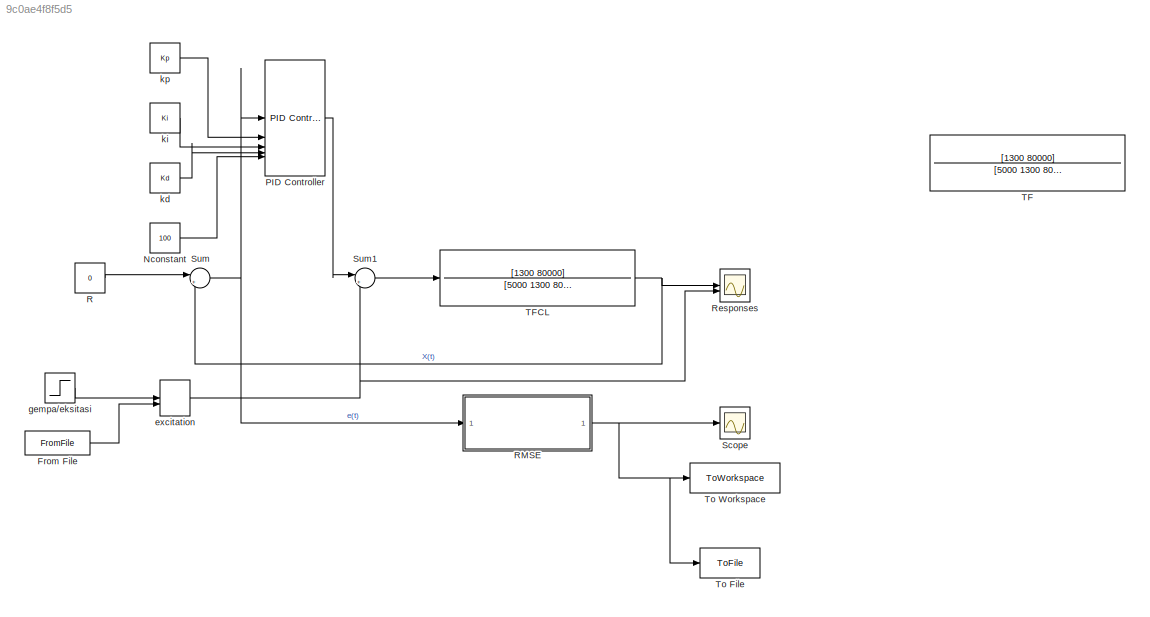
MODEL slx_9c0ae4f8f5d5
KIND model
CONFIG AbsTol = auto
CONFIG EnableMultiTasking = off
CONFIG FixedStep = auto
CONFIG MaxStep = auto
CONFIG MinStep = auto
CONFIG RelTol = 1e-3
CONFIG SampleTimeConstraint = Unconstrained
CONFIG SolverName = VariableStepAuto
CONFIG StartTime = 0.0
CONFIG StopTime = 100
BLOCK [FromFile] From File
  FileName = EQ1.mat
  SampleTime = 0
BLOCK [Constant] Nconstant
  Value = 100
BLOCK [Reference] PID Controller  REF=slpidlib/PID Controller
  LibrarySourceBlock = simulink/Continuous/PID Controller
  SourceBlock = slpidlib/PID Controller
  SourceType = PID 1dof
BLOCK [Constant] R
  Value = 0
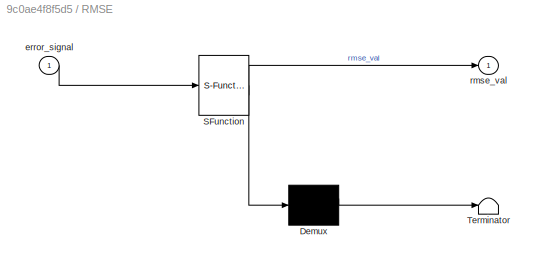
BLOCK [SubSystem] RMSE
  ErrorFcn = Stateflow.Translate.translate
  PermitHierarchicalResolution = ExplicitOnly
  SFBlockType = MATLAB Function
  TreatAsAtomicUnit = on
BLOCK [Demux] RMSE/ Demux 
  Outputs = 1
BLOCK [S-Function] RMSE/ SFunction 
  EnableBusSupport = off
  FunctionName = sf_sfun
  PortCounts = [1 2]
  SFcnIsStateOwnerBlock = off
  SFunctionDeploymentMode = off
  Tag = Stateflow S-Function 2
BLOCK [Terminator] RMSE/ Terminator 
BLOCK [Inport] RMSE/error_signal
BLOCK [Outport] RMSE/rmse_val
BLOCK [Scope] Responses
  ActiveDisplayYMaximum = 0.42538
  ActiveDisplayYMinimum = -0.33843
  Floating = off
  GraphicalSettings = {"Style":{"BackgroundColor":[1,1,1],"AxesColor":[1,1,1],"LabelsColor":[0,0,0],"PreserveColors":false,"Visible":[true,true],"LineStyle":["-","-"],"LineWidth":[0.75,0.75],"BarWidth":[0.9,0.9],"LineColor":[[1,0,0],[0,0,1]],"LineFaceAlpha":[1,1],"LineEdgeAlpha":[1,1],"Marker":["none","none"],"FontSize":8.5,"LineTrueColor":[[1,0,0],[0,0,1]],"ChannelNames":[""],"DefaultLegendLabel":["X(t)","excitation"]...<+1806ch>
  MultipleDisplayCache = [{"MaxYLimMag":0.42538,"MaxYLimReal":0.42538,"MinYLimMag":0,"MinYLimReal":-0.33843,"PlotAsMagnitudePhase":false,"ShowGrid":true,"ShowLegend":true,"Title":"%<SignalLabel>","YLabel":""}]
  NumInputPorts = 2
  ScopeFrameLocation = window
  ShowLegend = on
  WasSavedAsWebScope = on
  WindowPosition = [67.000000,123.000000,1366.000000,643.000000,]
BLOCK [Scope] Scope
  ActiveDisplayYMaximum = 0.091392924628716343
  ActiveDisplayYMinimum = -0.010154769403190702
  DataLoggingVariableName = ScopeData1
  Floating = off
  GraphicalSettings = {"Style":{"BackgroundColor":[0.12941176470588237,0.12941176470588237,0.12941176470588237],"AxesColor":[0.07058823529411765,0.07058823529411765,0.07058823529411765],"LabelsColor":[0.8509803921568627,0.8509803921568627,0.8509803921568627],"PreserveColors":false,"Visible":[true],"LineStyle":["-"],"LineWidth":[1.5],"BarWidth":[0.9],"LineColor":["auto"],"LineFaceAlpha":[1],"LineEdgeAlpha":[1],"Marker":...<+1928ch>
  MultipleDisplayCache = [{"MaxYLimMag":0.091392924628716343,"MaxYLimReal":0.091392924628716343,"MinYLimMag":0,"MinYLimReal":-0.010154769403190702,"PlotAsMagnitudePhase":false,"ShowGrid":true,"ShowLegend":false,"Title":"%<SignalLabel>","YLabel":""}]
  NumInputPorts = 1
  ScopeFrameLocation = window
  WasSavedAsWebScope = on
  WindowPosition = [680.000000,367.000000,560.000000,420.000000,]
BLOCK [Sum] Sum
  Inputs = |+-
BLOCK [Sum] Sum1
  Inputs = |++
BLOCK [TransferFcn] TF
  Denominator = [5000 1300 80000]
  Numerator = [1300 80000]
BLOCK [TransferFcn] TFCL
  Denominator = [5000 1300 80000]
  Numerator = [1300 80000]
BLOCK [ToFile] To File
  Filename = out.mat
BLOCK [ToWorkspace] To Workspace
  FixptAsFi = on
  MaxDataPoints = inf
  SampleTime = -1
  SaveFormat = Timeseries
  VariableName = RMSE
BLOCK [ManualSwitch] excitation
  CurrentSetting = 0
BLOCK [Step] gempa//eksitasi
  SampleTime = 0
  Time = 2
BLOCK [Constant] kd
  Value = Kd
BLOCK [Constant] ki
  Value = Ki
BLOCK [Constant] kp
  Value = Kp
LINE From File:1 -> excitation:2
LINE Nconstant:1 -> PID Controller:5
LINE PID Controller:1 -> Sum1:1
LINE R:1 -> Sum:1
NET RMSE:1 -> Scope:1, To File:1, To Workspace:1
LINE Sum1:1 -> TFCL:1
NET Sum:1 -> PID Controller:1, RMSE:1
NET TFCL:1 -> Responses:1, Sum:2
NET excitation:1 -> Responses:2, Sum1:2
LINE gempa//eksitasi:1 -> excitation:1
LINE kd:1 -> PID Controller:4
LINE ki:1 -> PID Controller:3
LINE kp:1 -> PID Controller:2
note: NET lines group one-source signal fan-out (src -> all destinations, sorted); 1:1 wires keep LINE
CHART RMSE states=1 transitions=1
  STATE_LABEL 'eML_blk_kernel()'
  STATE_LABEL 'SCRIPT:\nfunction rmse_val = rmse_error(error_signal)\n    % pastikan dalam bentuk kolom\n    %error_signal = error_signal(:);\n\n    % komputasi RMSE\n    rmse_val = sqrt( mean( error_signal.^2 ) );\n\nend\n'
CHART  states=0 transitions=0
